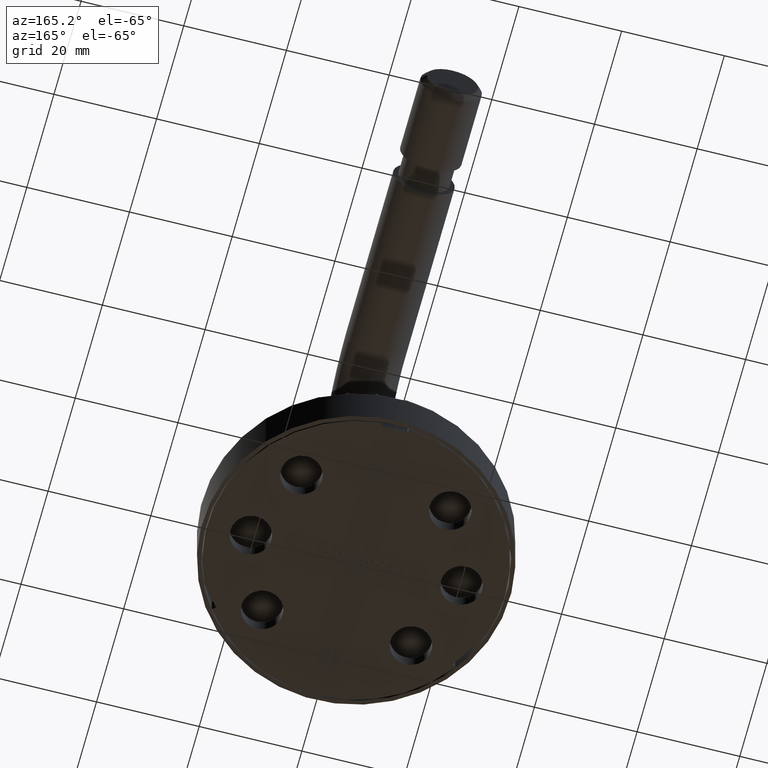
[diagram: clean part render]
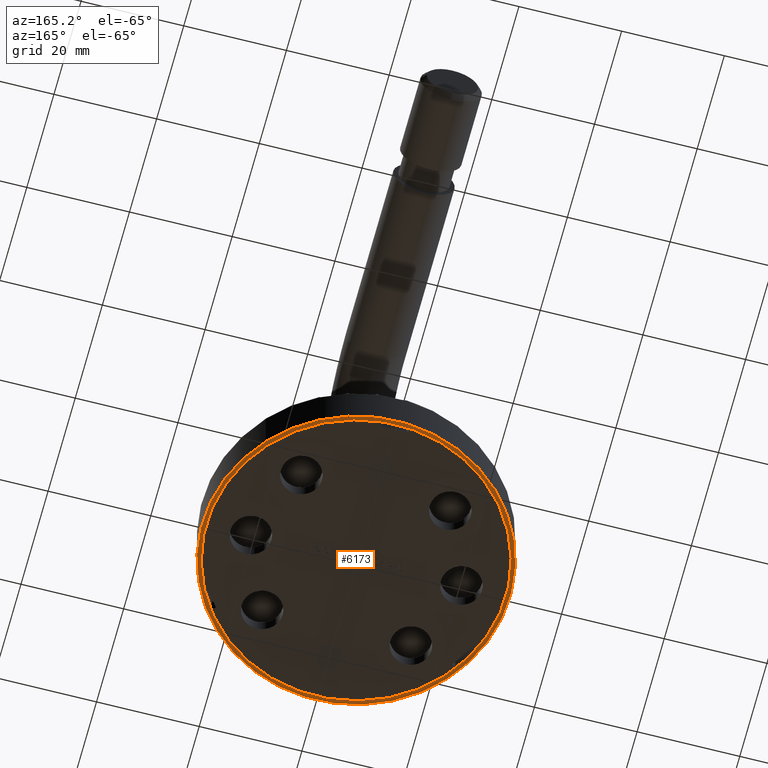
[diagram: same view with one face highlighted and labeled with its STEP entity id]
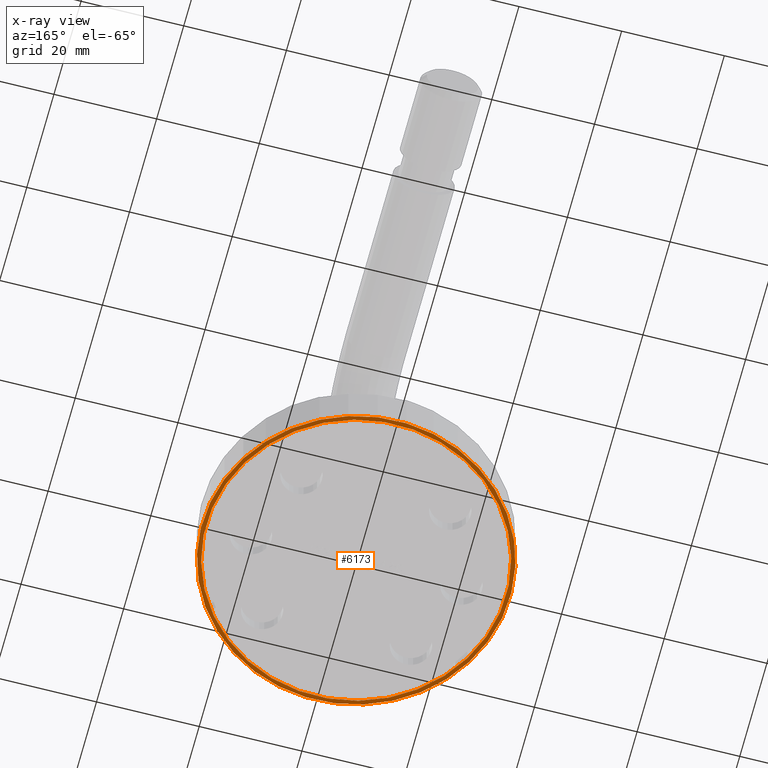
[diagram: x-ray of the same camera — body ghosted, the highlighted face saturated]
A machine part, auxiliary view. The second image highlights one B-rep face of the part: STEP entity #6173.
The next image is the same camera in x-ray: the body ghosted, the highlighted face saturated — about 0% of this face is hidden behind the body in this view.
In plain terms, the highlighted planar face has unit normal (0, 0, 1).
Its self-contained STEP definition (entity closure, byte-faithful):
#605 = EDGE_LOOP ( 'NONE', ( #11540, #8721 ) ) ;
#801 = DIRECTION ( 'NONE',  ( 0.000000000000000000, -0.000000000000000000, 1.000000000000000000 ) ) ;
#1709 = CIRCLE ( 'NONE', #3016, 30.00000000000000000 ) ;
#1992 = DIRECTION ( 'NONE',  ( 1.000000000000000000, 0.000000000000000000, 0.000000000000000000 ) ) ;
#2010 = CIRCLE ( 'NONE', #8894, 29.19999999999999929 ) ;
#2325 = VERTEX_POINT ( 'NONE', #11607 ) ;
#2629 = ORIENTED_EDGE ( 'NONE', *, *, #3860, .T. ) ;
#2837 = CARTESIAN_POINT ( 'NONE',  ( 29.19999999999999929, 0.000000000000000000, -10.99999999999999645 ) ) ;
#3016 = AXIS2_PLACEMENT_3D ( 'NONE', #10482, #10583, #3437 ) ;
#3437 = DIRECTION ( 'NONE',  ( 1.000000000000000000, 0.000000000000000000, 0.000000000000000000 ) ) ;
#3521 = DIRECTION ( 'NONE',  ( 1.000000000000000000, 0.000000000000000000, 0.000000000000000000 ) ) ;
#3860 = EDGE_CURVE ( 'NONE', #4115, #4862, #2010, .T. ) ;
#4115 = VERTEX_POINT ( 'NONE', #2837 ) ;
#4862 = VERTEX_POINT ( 'NONE', #9119 ) ;
#5395 = CARTESIAN_POINT ( 'NONE',  ( 0.000000000000000000, 0.000000000000000000, -10.99999999999999645 ) ) ;
#5588 = CARTESIAN_POINT ( 'NONE',  ( 0.000000000000000000, 30.00000000000000000, -10.99999999999999645 ) ) ;
#5606 = AXIS2_PLACEMENT_3D ( 'NONE', #14951, #8986, #1992 ) ;
#6173 = ADVANCED_FACE ( 'NONE', ( #12297, #8029 ), #13754, .F. ) ;
#6777 = DIRECTION ( 'NONE',  ( 1.000000000000000000, 0.000000000000000000, 0.000000000000000000 ) ) ;
#7195 = ORIENTED_EDGE ( 'NONE', *, *, #12100, .T. ) ;
#7568 = EDGE_LOOP ( 'NONE', ( #2629, #7195 ) ) ;
#7953 = CARTESIAN_POINT ( 'NONE',  ( 30.00000000000000000, 0.000000000000000000, -10.99999999999999645 ) ) ;
#8029 = FACE_BOUND ( 'NONE', #7568, .T. ) ;
#8271 = EDGE_CURVE ( 'NONE', #13831, #2325, #10602, .T. ) ;
#8721 = ORIENTED_EDGE ( 'NONE', *, *, #10304, .F. ) ;
#8894 = AXIS2_PLACEMENT_3D ( 'NONE', #14198, #10606, #3521 ) ;
#8986 = DIRECTION ( 'NONE',  ( -0.000000000000000000, -0.000000000000000000, 1.000000000000000000 ) ) ;
#9119 = CARTESIAN_POINT ( 'NONE',  ( -29.20000000000000284, 3.575968653510271533E-15, -10.99999999999999645 ) ) ;
#9548 = AXIS2_PLACEMENT_3D ( 'NONE', #5395, #10023, #11153 ) ;
#10023 = DIRECTION ( 'NONE',  ( -0.000000000000000000, -0.000000000000000000, 1.000000000000000000 ) ) ;
#10304 = EDGE_CURVE ( 'NONE', #2325, #13831, #1709, .T. ) ;
#10482 = CARTESIAN_POINT ( 'NONE',  ( 0.000000000000000000, 0.000000000000000000, -10.99999999999999645 ) ) ;
#10583 = DIRECTION ( 'NONE',  ( -0.000000000000000000, -0.000000000000000000, 1.000000000000000000 ) ) ;
#10602 = CIRCLE ( 'NONE', #9548, 30.00000000000000000 ) ;
#10606 = DIRECTION ( 'NONE',  ( -0.000000000000000000, -0.000000000000000000, 1.000000000000000000 ) ) ;
#11153 = DIRECTION ( 'NONE',  ( 1.000000000000000000, 0.000000000000000000, 0.000000000000000000 ) ) ;
#11540 = ORIENTED_EDGE ( 'NONE', *, *, #8271, .F. ) ;
#11607 = CARTESIAN_POINT ( 'NONE',  ( -30.00000000000000000, 3.673940397442059178E-15, -10.99999999999999645 ) ) ;
#12100 = EDGE_CURVE ( 'NONE', #4862, #4115, #13641, .T. ) ;
#12297 = FACE_OUTER_BOUND ( 'NONE', #605, .T. ) ;
#13641 = CIRCLE ( 'NONE', #5606, 29.19999999999999929 ) ;
#13754 = PLANE ( 'NONE',  #14204 ) ;
#13831 = VERTEX_POINT ( 'NONE', #7953 ) ;
#14198 = CARTESIAN_POINT ( 'NONE',  ( 0.000000000000000000, 0.000000000000000000, -10.99999999999999645 ) ) ;
#14204 = AXIS2_PLACEMENT_3D ( 'NONE', #5588, #801, #6777 ) ;
#14951 = CARTESIAN_POINT ( 'NONE',  ( 0.000000000000000000, 0.000000000000000000, -10.99999999999999645 ) ) ;